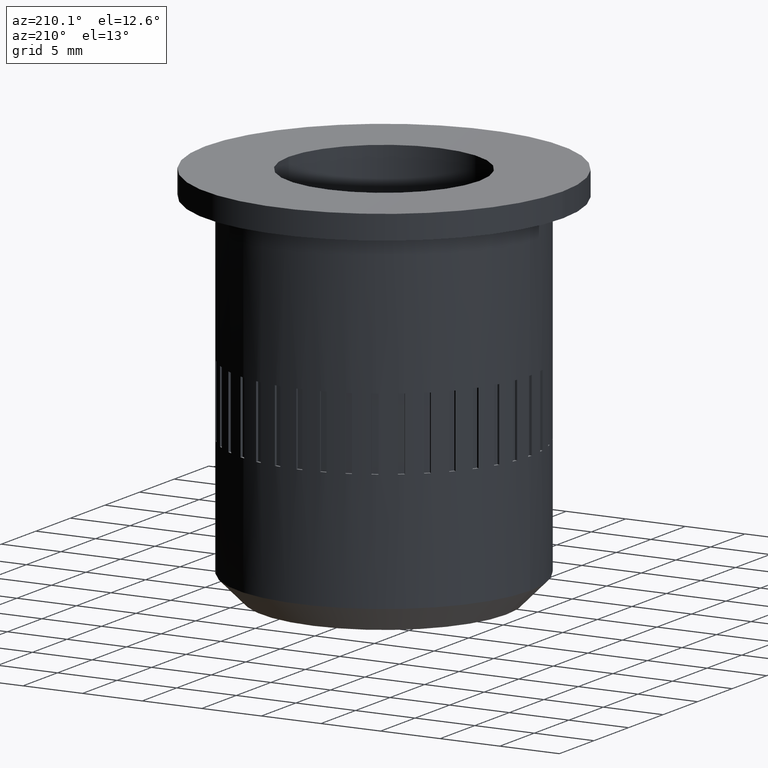
[diagram: clean part render]
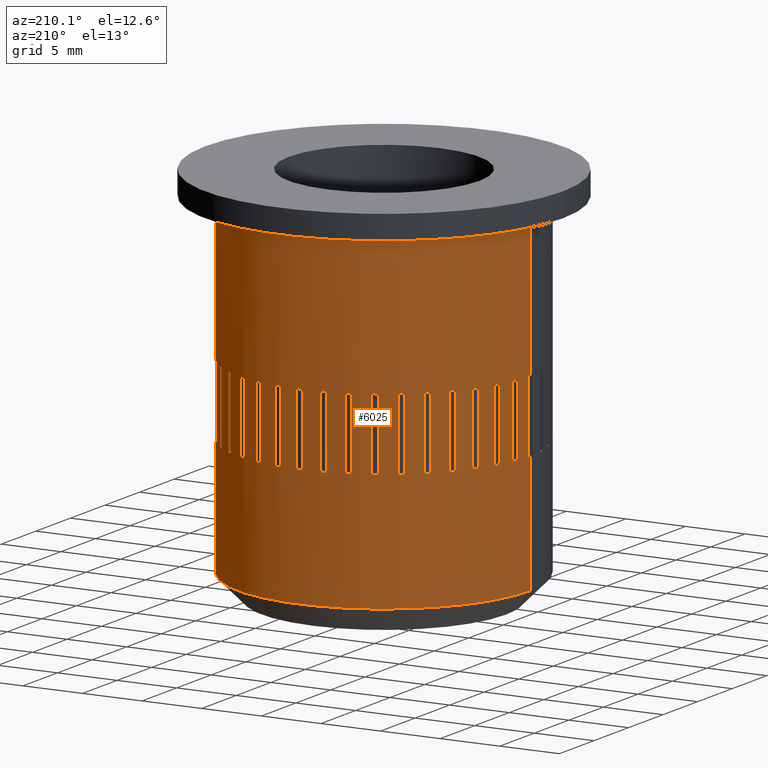
[diagram: same view with one face highlighted and labeled with its STEP entity id]
A machine part, auxiliary view. The second image highlights one B-rep face of the part: STEP entity #6025.
In plain terms, the highlighted cylindrical surface (partial cylindrical patch) has radius 12.25 mm, axis along (-0, -0, -1).
Its self-contained STEP definition (entity closure, byte-faithful):
#16 = EDGE_CURVE ( 'NONE', #161, #240, #5222, .T. ) ;
#18 = EDGE_LOOP ( 'NONE', ( #1911, #1912, #1913, #1914 ) ) ;
#134 = VERTEX_POINT ( 'NONE', #5407 ) ;
#148 = VERTEX_POINT ( 'NONE', #2913 ) ;
#161 = VERTEX_POINT ( 'NONE', #2868 ) ;
#163 = VERTEX_POINT ( 'NONE', #2876 ) ;
#191 = VERTEX_POINT ( 'NONE', #2281 ) ;
#203 = VERTEX_POINT ( 'NONE', #2292 ) ;
#204 = VERTEX_POINT ( 'NONE', #2295 ) ;
#205 = VERTEX_POINT ( 'NONE', #2290 ) ;
#211 = VERTEX_POINT ( 'NONE', #2293 ) ;
#212 = VERTEX_POINT ( 'NONE', #2315 ) ;
#220 = VERTEX_POINT ( 'NONE', #2296 ) ;
#223 = VERTEX_POINT ( 'NONE', #2288 ) ;
#238 = VERTEX_POINT ( 'NONE', #1213 ) ;
#240 = VERTEX_POINT ( 'NONE', #1232 ) ;
#242 = VERTEX_POINT ( 'NONE', #1233 ) ;
#254 = VERTEX_POINT ( 'NONE', #1246 ) ;
#255 = VERTEX_POINT ( 'NONE', #1247 ) ;
#256 = VERTEX_POINT ( 'NONE', #1244 ) ;
#257 = VERTEX_POINT ( 'NONE', #1245 ) ;
#258 = VERTEX_POINT ( 'NONE', #1242 ) ;
#259 = VERTEX_POINT ( 'NONE', #1243 ) ;
#260 = VERTEX_POINT ( 'NONE', #1240 ) ;
#261 = VERTEX_POINT ( 'NONE', #1241 ) ;
#262 = VERTEX_POINT ( 'NONE', #1238 ) ;
#263 = VERTEX_POINT ( 'NONE', #1239 ) ;
#264 = VERTEX_POINT ( 'NONE', #1222 ) ;
#265 = VERTEX_POINT ( 'NONE', #1221 ) ;
#266 = VERTEX_POINT ( 'NONE', #1223 ) ;
#267 = VERTEX_POINT ( 'NONE', #1208 ) ;
#268 = VERTEX_POINT ( 'NONE', #1216 ) ;
#269 = VERTEX_POINT ( 'NONE', #1214 ) ;
#271 = VERTEX_POINT ( 'NONE', #1224 ) ;
#273 = VERTEX_POINT ( 'NONE', #5665 ) ;
#274 = VERTEX_POINT ( 'NONE', #5651 ) ;
#275 = VERTEX_POINT ( 'NONE', #5652 ) ;
#276 = VERTEX_POINT ( 'NONE', #5657 ) ;
#278 = VERTEX_POINT ( 'NONE', #5662 ) ;
#281 = VERTEX_POINT ( 'NONE', #5645 ) ;
#283 = VERTEX_POINT ( 'NONE', #5676 ) ;
#285 = VERTEX_POINT ( 'NONE', #5677 ) ;
#290 = VERTEX_POINT ( 'NONE', #5672 ) ;
#298 = VERTEX_POINT ( 'NONE', #5673 ) ;
#303 = VERTEX_POINT ( 'NONE', #5670 ) ;
#304 = VERTEX_POINT ( 'NONE', #5675 ) ;
#305 = VERTEX_POINT ( 'NONE', #5649 ) ;
#306 = VERTEX_POINT ( 'NONE', #5644 ) ;
#307 = VERTEX_POINT ( 'NONE', #5669 ) ;
#308 = VERTEX_POINT ( 'NONE', #5671 ) ;
#309 = VERTEX_POINT ( 'NONE', #2956 ) ;
#310 = VERTEX_POINT ( 'NONE', #2955 ) ;
#311 = VERTEX_POINT ( 'NONE', #2958 ) ;
#312 = VERTEX_POINT ( 'NONE', #2961 ) ;
#313 = VERTEX_POINT ( 'NONE', #2954 ) ;
#315 = VERTEX_POINT ( 'NONE', #2952 ) ;
#316 = VERTEX_POINT ( 'NONE', #2953 ) ;
#317 = VERTEX_POINT ( 'NONE', #2968 ) ;
#318 = VERTEX_POINT ( 'NONE', #2951 ) ;
#319 = VERTEX_POINT ( 'NONE', #2950 ) ;
#320 = VERTEX_POINT ( 'NONE', #2957 ) ;
#321 = VERTEX_POINT ( 'NONE', #2959 ) ;
#322 = VERTEX_POINT ( 'NONE', #2949 ) ;
#326 = VERTEX_POINT ( 'NONE', #2967 ) ;
#331 = VERTEX_POINT ( 'NONE', #2964 ) ;
#336 = VERTEX_POINT ( 'NONE', #1357 ) ;
#338 = VERTEX_POINT ( 'NONE', #1350 ) ;
#339 = VERTEX_POINT ( 'NONE', #1353 ) ;
#340 = VERTEX_POINT ( 'NONE', #1352 ) ;
#342 = VERTEX_POINT ( 'NONE', #1348 ) ;
#350 = VERTEX_POINT ( 'NONE', #1346 ) ;
#354 = VERTEX_POINT ( 'NONE', #2946 ) ;
#355 = VERTEX_POINT ( 'NONE', #2945 ) ;
#356 = VERTEX_POINT ( 'NONE', #2944 ) ;
#357 = VERTEX_POINT ( 'NONE', #2934 ) ;
#363 = VERTEX_POINT ( 'NONE', #2943 ) ;
#366 = VERTEX_POINT ( 'NONE', #2941 ) ;
#367 = VERTEX_POINT ( 'NONE', #1059 ) ;
#368 = VERTEX_POINT ( 'NONE', #1060 ) ;
#370 = VERTEX_POINT ( 'NONE', #1062 ) ;
#377 = VERTEX_POINT ( 'NONE', #1069 ) ;
#378 = VERTEX_POINT ( 'NONE', #1070 ) ;
#379 = VERTEX_POINT ( 'NONE', #1071 ) ;
#385 = VERTEX_POINT ( 'NONE', #1077 ) ;
#389 = VERTEX_POINT ( 'NONE', #1081 ) ;
#399 = VERTEX_POINT ( 'NONE', #1091 ) ;
#402 = EDGE_LOOP ( 'NONE', ( #4320, #4319, #4318, #4317, #4316, #4315, #4314, #4313, #3972, #3982, #3980, #3978 ) ) ;
#404 = EDGE_LOOP ( 'NONE', ( #3521, #3520, #3522, #3524 ) ) ;
#406 = EDGE_LOOP ( 'NONE', ( #3966, #3516, #3537, #3536 ) ) ;
#407 = EDGE_LOOP ( 'NONE', ( #3964, #4345, #3523, #3519 ) ) ;
#469 = CARTESIAN_POINT ( 'NONE',  ( 0.0000000000000000000, 0.0000000000000000000, 12.00000000000000200 ) ) ;
#470 = DIRECTION ( 'NONE',  ( 0.0000000000000000000, 0.0000000000000000000, 1.000000000000000000 ) ) ;
#471 = DIRECTION ( 'NONE',  ( 0.3090169943749446800, 0.9510565162951544200, 0.0000000000000000000 ) ) ;
#472 = CARTESIAN_POINT ( 'NONE',  ( 0.0000000000000000000, 0.0000000000000000000, 12.00000000000000200 ) ) ;
#473 = DIRECTION ( 'NONE',  ( 0.0000000000000000000, 0.0000000000000000000, 1.000000000000000000 ) ) ;
#474 = DIRECTION ( 'NONE',  ( 0.8910065241883673400, 0.4539904997395477500, 0.0000000000000000000 ) ) ;
#475 = CARTESIAN_POINT ( 'NONE',  ( 0.0000000000000000000, 0.0000000000000000000, 12.00000000000000200 ) ) ;
#476 = DIRECTION ( 'NONE',  ( 0.0000000000000000000, 0.0000000000000000000, 1.000000000000000000 ) ) ;
#477 = DIRECTION ( 'NONE',  ( 0.7071067811865561200, -0.7071067811865389100, 0.0000000000000000000 ) ) ;
#478 = CARTESIAN_POINT ( 'NONE',  ( 1.669001002520141600, 12.13577091303172400, 12.00000000000000200 ) ) ;
#479 = DIRECTION ( 'NONE',  ( -0.0000000000000000000, -0.0000000000000000000, 1.000000000000000000 ) ) ;
#480 = CARTESIAN_POINT ( 'NONE',  ( -8.837030733141039800, 8.483477342547734800, 12.00000000000000200 ) ) ;
#481 = DIRECTION ( 'NONE',  ( -0.0000000000000000000, -0.0000000000000000000, 1.000000000000000000 ) ) ;
#482 = CARTESIAN_POINT ( 'NONE',  ( -0.2500000000000007800, 12.24744871391589000, 12.00000000000000200 ) ) ;
#483 = DIRECTION ( 'NONE',  ( -0.0000000000000000000, -0.0000000000000000000, 1.000000000000000000 ) ) ;
#484 = CARTESIAN_POINT ( 'NONE',  ( 0.0000000000000000000, 0.0000000000000000000, 18.00000000000000400 ) ) ;
#485 = DIRECTION ( 'NONE',  ( 0.0000000000000000000, 0.0000000000000000000, 1.000000000000000000 ) ) ;
#486 = DIRECTION ( 'NONE',  ( 0.1564344650402276200, 0.9876883405951383300, 0.0000000000000000000 ) ) ;
#487 = CARTESIAN_POINT ( 'NONE',  ( -12.25000000000000000, 0.0000000000000000000, 30.00000000000000000 ) ) ;
#488 = DIRECTION ( 'NONE',  ( -0.0000000000000000000, -0.0000000000000000000, -1.000000000000000000 ) ) ;
#489 = CARTESIAN_POINT ( 'NONE',  ( 0.0000000000000000000, 0.0000000000000000000, 18.00000000000000400 ) ) ;
#490 = DIRECTION ( 'NONE',  ( 0.0000000000000000000, 0.0000000000000000000, 1.000000000000000000 ) ) ;
#491 = DIRECTION ( 'NONE',  ( 0.8910065241883673400, 0.4539904997395477500, 0.0000000000000000000 ) ) ;
#492 = CARTESIAN_POINT ( 'NONE',  ( 0.2499999999999992500, 12.24744871391589000, 12.00000000000000200 ) ) ;
#493 = DIRECTION ( 'NONE',  ( -0.0000000000000000000, -0.0000000000000000000, 1.000000000000000000 ) ) ;
#494 = CARTESIAN_POINT ( 'NONE',  ( 0.0000000000000000000, 0.0000000000000000000, 12.00000000000000200 ) ) ;
#495 = DIRECTION ( 'NONE',  ( 0.0000000000000000000, 0.0000000000000000000, 1.000000000000000000 ) ) ;
#496 = DIRECTION ( 'NONE',  ( 0.8910065241883737800, -0.4539904997395350900, 0.0000000000000000000 ) ) ;
#497 = CARTESIAN_POINT ( 'NONE',  ( 0.0000000000000000000, 0.0000000000000000000, 12.00000000000000200 ) ) ;
#498 = DIRECTION ( 'NONE',  ( 0.0000000000000000000, 0.0000000000000000000, 1.000000000000000000 ) ) ;
#499 = DIRECTION ( 'NONE',  ( 0.8090169943749465600, 0.5877852522924741400, 0.0000000000000000000 ) ) ;
#504 = CARTESIAN_POINT ( 'NONE',  ( -12.24744871391589200, 0.2499999999999564800, 12.00000000000000200 ) ) ;
#505 = DIRECTION ( 'NONE',  ( -0.0000000000000000000, -0.0000000000000000000, 1.000000000000000000 ) ) ;
#509 = CARTESIAN_POINT ( 'NONE',  ( 10.79905908382654000, 5.782976993212360000, 12.00000000000000200 ) ) ;
#510 = DIRECTION ( 'NONE',  ( -0.0000000000000000000, -0.0000000000000000000, 1.000000000000000000 ) ) ;
#511 = CARTESIAN_POINT ( 'NONE',  ( 0.0000000000000000000, 0.0000000000000000000, 12.00000000000000200 ) ) ;
#512 = DIRECTION ( 'NONE',  ( 0.0000000000000000000, 0.0000000000000000000, 1.000000000000000000 ) ) ;
#513 = DIRECTION ( 'NONE',  ( 0.9876883405951398800, -0.1564344650402170700, 0.0000000000000000000 ) ) ;
#514 = CARTESIAN_POINT ( 'NONE',  ( 0.0000000000000000000, 0.0000000000000000000, 12.00000000000000200 ) ) ;
#515 = DIRECTION ( 'NONE',  ( 0.0000000000000000000, 0.0000000000000000000, 1.000000000000000000 ) ) ;
#516 = DIRECTION ( 'NONE',  ( 0.1564344650402420800, -0.9876883405951359900, 0.0000000000000000000 ) ) ;
#519 = CARTESIAN_POINT ( 'NONE',  ( 0.0000000000000000000, 0.0000000000000000000, 18.00000000000000400 ) ) ;
#520 = DIRECTION ( 'NONE',  ( 0.0000000000000000000, 0.0000000000000000000, 1.000000000000000000 ) ) ;
#521 = DIRECTION ( 'NONE',  ( 1.000000000000000000, 0.0000000000000000000, 0.0000000000000000000 ) ) ;
#522 = CARTESIAN_POINT ( 'NONE',  ( 12.24744871391588700, 0.2500000000001290100, 12.00000000000000200 ) ) ;
#523 = DIRECTION ( 'NONE',  ( -0.0000000000000000000, -0.0000000000000000000, 1.000000000000000000 ) ) ;
#524 = CARTESIAN_POINT ( 'NONE',  ( 0.0000000000000000000, 0.0000000000000000000, 12.00000000000000200 ) ) ;
#525 = DIRECTION ( 'NONE',  ( 0.0000000000000000000, 0.0000000000000000000, 1.000000000000000000 ) ) ;
#526 = DIRECTION ( 'NONE',  ( 0.4539904997395447000, 0.8910065241883690100, 0.0000000000000000000 ) ) ;
#527 = CARTESIAN_POINT ( 'NONE',  ( 8.483477342547640600, 8.837030733141126900, 12.00000000000000200 ) ) ;
#528 = DIRECTION ( 'NONE',  ( -0.0000000000000000000, -0.0000000000000000000, 1.000000000000000000 ) ) ;
#532 = CARTESIAN_POINT ( 'NONE',  ( 0.0000000000000000000, 0.0000000000000000000, 12.00000000000000200 ) ) ;
#533 = DIRECTION ( 'NONE',  ( 0.0000000000000000000, 0.0000000000000000000, 1.000000000000000000 ) ) ;
#534 = DIRECTION ( 'NONE',  ( -3.491481338843133700E-015, 1.000000000000000000, 0.0000000000000000000 ) ) ;
#538 = CARTESIAN_POINT ( 'NONE',  ( 5.337473731117908600, 11.02605433369645200, 12.00000000000000200 ) ) ;
#539 = DIRECTION ( 'NONE',  ( -0.0000000000000000000, -0.0000000000000000000, 1.000000000000000000 ) ) ;
#542 = CARTESIAN_POINT ( 'NONE',  ( 0.0000000000000000000, 0.0000000000000000000, 1.999999999999998200 ) ) ;
#543 = DIRECTION ( 'NONE',  ( -0.0000000000000000000, -0.0000000000000000000, 1.000000000000000000 ) ) ;
#544 = DIRECTION ( 'NONE',  ( 1.000000000000000000, 0.0000000000000000000, 0.0000000000000000000 ) ) ;
#545 = CARTESIAN_POINT ( 'NONE',  ( 0.0000000000000000000, 0.0000000000000000000, 18.00000000000000400 ) ) ;
#546 = DIRECTION ( 'NONE',  ( 0.0000000000000000000, 0.0000000000000000000, 1.000000000000000000 ) ) ;
#547 = DIRECTION ( 'NONE',  ( 0.7071067811865561200, -0.7071067811865389100, 0.0000000000000000000 ) ) ;
#548 = CARTESIAN_POINT ( 'NONE',  ( -6.996615483654457200, 10.05534046036666000, 12.00000000000000200 ) ) ;
#549 = DIRECTION ( 'NONE',  ( -0.0000000000000000000, -0.0000000000000000000, 1.000000000000000000 ) ) ;
#550 = CARTESIAN_POINT ( 'NONE',  ( -5.782976993212249000, 10.79905908382660100, 12.00000000000000200 ) ) ;
#551 = DIRECTION ( 'NONE',  ( -0.0000000000000000000, -0.0000000000000000000, 1.000000000000000000 ) ) ;
#552 = CARTESIAN_POINT ( 'NONE',  ( -10.05534046036668300, 6.996615483654419000, 12.00000000000000200 ) ) ;
#553 = DIRECTION ( 'NONE',  ( -0.0000000000000000000, -0.0000000000000000000, 1.000000000000000000 ) ) ;
#554 = CARTESIAN_POINT ( 'NONE',  ( 3.546905661261661200, 11.72527015595419000, 12.00000000000000200 ) ) ;
#555 = DIRECTION ( 'NONE',  ( -0.0000000000000000000, -0.0000000000000000000, 1.000000000000000000 ) ) ;
#560 = EDGE_LOOP ( 'NONE', ( #4330, #4331, #4332, #4333 ) ) ;
#561 = EDGE_LOOP ( 'NONE', ( #1915, #1916, #1917, #1918 ) ) ;
#562 = EDGE_LOOP ( 'NONE', ( #4341, #4343, #4294, #4293 ) ) ;
#838 = CARTESIAN_POINT ( 'NONE',  ( 0.0000000000000000000, 0.0000000000000000000, 30.00000000000000000 ) ) ;
#839 = DIRECTION ( 'NONE',  ( -0.0000000000000000000, -0.0000000000000000000, -1.000000000000000000 ) ) ;
#840 = DIRECTION ( 'NONE',  ( -1.000000000000000000, 0.0000000000000000000, 0.0000000000000000000 ) ) ;
#889 = EDGE_CURVE ( 'NONE', #212, #203, #5226, .T. ) ;
#890 = EDGE_CURVE ( 'NONE', #203, #242, #5229, .T. ) ;
#891 = EDGE_CURVE ( 'NONE', #191, #5641, #5228, .T. ) ;
#894 = EDGE_CURVE ( 'NONE', #238, #148, #5232, .T. ) ;
#908 = EDGE_CURVE ( 'NONE', #356, #355, #5262, .T. ) ;
#909 = EDGE_CURVE ( 'NONE', #377, #379, #5261, .T. ) ;
#911 = EDGE_CURVE ( 'NONE', #331, #290, #5264, .T. ) ;
#922 = EDGE_LOOP ( 'NONE', ( #3535, #3534, #3533, #3532 ) ) ;
#923 = EDGE_LOOP ( 'NONE', ( #3976, #3974, #3970, #3968 ) ) ;
#925 = EDGE_CURVE ( 'NONE', #5641, #5640, #5286, .T. ) ;
#926 = EDGE_CURVE ( 'NONE', #306, #274, #5285, .T. ) ;
#928 = EDGE_CURVE ( 'NONE', #260, #354, #5288, .T. ) ;
#930 = EDGE_CURVE ( 'NONE', #339, #357, #4830, .T. ) ;
#933 = EDGE_CURVE ( 'NONE', #354, #370, #4834, .T. ) ;
#957 = FACE_BOUND ( 'NONE', #407, .T. ) ;
#958 = FACE_BOUND ( 'NONE', #404, .T. ) ;
#959 = FACE_BOUND ( 'NONE', #2171, .T. ) ;
#960 = FACE_BOUND ( 'NONE', #18, .T. ) ;
#961 = FACE_BOUND ( 'NONE', #561, .T. ) ;
#962 = FACE_BOUND ( 'NONE', #1363, .T. ) ;
#963 = FACE_BOUND ( 'NONE', #2170, .T. ) ;
#964 = FACE_BOUND ( 'NONE', #1906, .T. ) ;
#965 = FACE_BOUND ( 'NONE', #560, .T. ) ;
#966 = FACE_BOUND ( 'NONE', #3498, .T. ) ;
#967 = FACE_BOUND ( 'NONE', #2173, .T. ) ;
#968 = FACE_BOUND ( 'NONE', #923, .T. ) ;
#969 = FACE_BOUND ( 'NONE', #406, .T. ) ;
#970 = FACE_BOUND ( 'NONE', #922, .T. ) ;
#971 = FACE_BOUND ( 'NONE', #5825, .T. ) ;
#972 = FACE_BOUND ( 'NONE', #562, .T. ) ;
#973 = FACE_BOUND ( 'NONE', #2169, .T. ) ;
#974 = FACE_BOUND ( 'NONE', #1903, .T. ) ;
#975 = FACE_BOUND ( 'NONE', #1904, .T. ) ;
#976 = FACE_OUTER_BOUND ( 'NONE', #402, .T. ) ;
#977 = CYLINDRICAL_SURFACE ( 'NONE', #3326, 12.25000000000000000 ) ;
#1059 = CARTESIAN_POINT ( 'NONE',  ( -12.13577091303170300, 1.669001002520270800, 18.00000000000000400 ) ) ;
#1060 = CARTESIAN_POINT ( 'NONE',  ( -10.79905908382662000, 5.782976993212209900, 12.00000000000000200 ) ) ;
#1062 = CARTESIAN_POINT ( 'NONE',  ( 12.24744871391588700, 0.2500000000001290100, 18.00000000000000400 ) ) ;
#1069 = CARTESIAN_POINT ( 'NONE',  ( -11.02605433369639200, 5.337473731118024900, 12.00000000000000200 ) ) ;
#1070 = CARTESIAN_POINT ( 'NONE',  ( -10.79905908382662000, 5.782976993212209900, 18.00000000000000400 ) ) ;
#1071 = CARTESIAN_POINT ( 'NONE',  ( -11.02605433369639300, 5.337473731118025800, 18.00000000000000400 ) ) ;
#1077 = CARTESIAN_POINT ( 'NONE',  ( -11.57076165876668300, 4.022433919409359700, 12.00000000000000200 ) ) ;
#1081 = CARTESIAN_POINT ( 'NONE',  ( -12.25000000000000000, 0.0000000000000000000, 12.00000000000000200 ) ) ;
#1091 = CARTESIAN_POINT ( 'NONE',  ( -7.401123980841929600, 9.761447834220419400, 18.00000000000000400 ) ) ;
#1092 = CARTESIAN_POINT ( 'NONE',  ( 2.162845172817711600, 12.05755368051161400, 12.00000000000000200 ) ) ;
#1093 = DIRECTION ( 'NONE',  ( -0.0000000000000000000, -0.0000000000000000000, 1.000000000000000000 ) ) ;
#1094 = CARTESIAN_POINT ( 'NONE',  ( 0.0000000000000000000, 0.0000000000000000000, 18.00000000000000400 ) ) ;
#1095 = DIRECTION ( 'NONE',  ( 0.0000000000000000000, 0.0000000000000000000, 1.000000000000000000 ) ) ;
#1096 = DIRECTION ( 'NONE',  ( 0.9876883405951398800, -0.1564344650402170700, 0.0000000000000000000 ) ) ;
#1097 = CARTESIAN_POINT ( 'NONE',  ( 11.02605433369631900, 5.337473731118178600, 12.00000000000000200 ) ) ;
#1098 = DIRECTION ( 'NONE',  ( -0.0000000000000000000, -0.0000000000000000000, 1.000000000000000000 ) ) ;
#1105 = CARTESIAN_POINT ( 'NONE',  ( 5.782976993212096200, 10.79905908382668600, 12.00000000000000200 ) ) ;
#1106 = DIRECTION ( 'NONE',  ( -0.0000000000000000000, -0.0000000000000000000, 1.000000000000000000 ) ) ;
#1133 = CARTESIAN_POINT ( 'NONE',  ( 0.0000000000000000000, 0.0000000000000000000, 12.00000000000000200 ) ) ;
#1134 = DIRECTION ( 'NONE',  ( 0.0000000000000000000, 0.0000000000000000000, 1.000000000000000000 ) ) ;
#1135 = DIRECTION ( 'NONE',  ( 0.1564344650402276200, 0.9876883405951383300, 0.0000000000000000000 ) ) ;
#1136 = CARTESIAN_POINT ( 'NONE',  ( -11.02605433369639200, 5.337473731118024900, 12.00000000000000200 ) ) ;
#1137 = DIRECTION ( 'NONE',  ( -0.0000000000000000000, -0.0000000000000000000, 1.000000000000000000 ) ) ;
#1141 = CARTESIAN_POINT ( 'NONE',  ( -2.162845172817886100, 12.05755368051158300, 12.00000000000000200 ) ) ;
#1142 = DIRECTION ( 'NONE',  ( -0.0000000000000000000, -0.0000000000000000000, 1.000000000000000000 ) ) ;
#1161 = CARTESIAN_POINT ( 'NONE',  ( 0.0000000000000000000, 0.0000000000000000000, 18.00000000000000400 ) ) ;
#1162 = DIRECTION ( 'NONE',  ( 0.0000000000000000000, 0.0000000000000000000, 1.000000000000000000 ) ) ;
#1163 = DIRECTION ( 'NONE',  ( 0.4539904997395569600, -0.8910065241883627900, 0.0000000000000000000 ) ) ;
#1164 = CARTESIAN_POINT ( 'NONE',  ( 10.05534046036658100, 6.996615483654563800, 12.00000000000000200 ) ) ;
#1165 = DIRECTION ( 'NONE',  ( -0.0000000000000000000, -0.0000000000000000000, 1.000000000000000000 ) ) ;
#1169 = CARTESIAN_POINT ( 'NONE',  ( 12.25000000000000000, 1.500192328955507700E-015, 30.00000000000000000 ) ) ;
#1170 = DIRECTION ( 'NONE',  ( -0.0000000000000000000, -0.0000000000000000000, -1.000000000000000000 ) ) ;
#1174 = CARTESIAN_POINT ( 'NONE',  ( 0.0000000000000000000, 0.0000000000000000000, 18.00000000000000400 ) ) ;
#1175 = DIRECTION ( 'NONE',  ( 0.0000000000000000000, 0.0000000000000000000, 1.000000000000000000 ) ) ;
#1176 = DIRECTION ( 'NONE',  ( 0.1564344650402420800, -0.9876883405951359900, 0.0000000000000000000 ) ) ;
#1183 = CARTESIAN_POINT ( 'NONE',  ( 0.0000000000000000000, 0.0000000000000000000, 18.00000000000000400 ) ) ;
#1184 = DIRECTION ( 'NONE',  ( 0.0000000000000000000, 0.0000000000000000000, 1.000000000000000000 ) ) ;
#1185 = DIRECTION ( 'NONE',  ( 1.047444401652940000E-014, -1.000000000000000000, 0.0000000000000000000 ) ) ;
#1208 = CARTESIAN_POINT ( 'NONE',  ( -12.25000000000000000, 0.0000000000000000000, 30.00000000000000000 ) ) ;
#1213 = CARTESIAN_POINT ( 'NONE',  ( 5.782976993212096200, 10.79905908382668600, 12.00000000000000200 ) ) ;
#1214 = CARTESIAN_POINT ( 'NONE',  ( -10.05534046036668300, 6.996615483654419000, 18.00000000000000400 ) ) ;
#1216 = CARTESIAN_POINT ( 'NONE',  ( -12.24744871391589200, 0.2499999999999564800, 18.00000000000000400 ) ) ;
#1221 = CARTESIAN_POINT ( 'NONE',  ( 3.546905661261661200, 11.72527015595419000, 18.00000000000000400 ) ) ;
#1222 = CARTESIAN_POINT ( 'NONE',  ( -5.337473731118064900, 11.02605433369637400, 12.00000000000000200 ) ) ;
#1223 = CARTESIAN_POINT ( 'NONE',  ( -11.57076165876668300, 4.022433919409359700, 18.00000000000000400 ) ) ;
#1224 = CARTESIAN_POINT ( 'NONE',  ( -11.72527015595415500, 3.546905661261782400, 12.00000000000000200 ) ) ;
#1232 = CARTESIAN_POINT ( 'NONE',  ( 8.837030733140919000, 8.483477342547857300, 18.00000000000000400 ) ) ;
#1233 = CARTESIAN_POINT ( 'NONE',  ( 1.669001002520140900, 12.13577091303172000, 18.00000000000000400 ) ) ;
#1238 = CARTESIAN_POINT ( 'NONE',  ( -9.761447834220447800, 7.401123980841893200, 18.00000000000000400 ) ) ;
#1239 = CARTESIAN_POINT ( 'NONE',  ( 3.546905661261661200, 11.72527015595419000, 12.00000000000000200 ) ) ;
#1240 = CARTESIAN_POINT ( 'NONE',  ( 12.25000000000000000, 1.500192328955507700E-015, 30.00000000000000000 ) ) ;
#1241 = CARTESIAN_POINT ( 'NONE',  ( -4.022433919409400500, 11.57076165876666700, 18.00000000000000400 ) ) ;
#1242 = CARTESIAN_POINT ( 'NONE',  ( 4.022433919409240700, 11.57076165876672200, 18.00000000000000400 ) ) ;
#1243 = CARTESIAN_POINT ( 'NONE',  ( -4.022433919409401400, 11.57076165876666900, 12.00000000000000200 ) ) ;
#1244 = CARTESIAN_POINT ( 'NONE',  ( 4.022433919409240700, 11.57076165876672200, 12.00000000000000200 ) ) ;
#1245 = CARTESIAN_POINT ( 'NONE',  ( -0.2500000000000007800, 12.24744871391589000, 18.00000000000000400 ) ) ;
#1246 = CARTESIAN_POINT ( 'NONE',  ( -3.546905661261825000, 11.72527015595414200, 18.00000000000000400 ) ) ;
#1247 = CARTESIAN_POINT ( 'NONE',  ( 9.761447834220339500, 7.401123980842034400, 12.00000000000000200 ) ) ;
#1346 = CARTESIAN_POINT ( 'NONE',  ( 7.401123980841785700, 9.761447834220529500, 12.00000000000000200 ) ) ;
#1348 = CARTESIAN_POINT ( 'NONE',  ( 12.25000000000000000, 1.500192328955507700E-015, 12.00000000000000200 ) ) ;
#1350 = CARTESIAN_POINT ( 'NONE',  ( 12.05755368051155900, 2.162845172818018000, 12.00000000000000200 ) ) ;
#1352 = CARTESIAN_POINT ( 'NONE',  ( -12.24744871391589200, 0.2499999999999564800, 12.00000000000000200 ) ) ;
#1353 = CARTESIAN_POINT ( 'NONE',  ( 12.13577091303167800, 1.669001002520450000, 18.00000000000000400 ) ) ;
#1357 = CARTESIAN_POINT ( 'NONE',  ( -8.837030733141039800, 8.483477342547734800, 12.00000000000000200 ) ) ;
#1363 = EDGE_LOOP ( 'NONE', ( #1919, #1920, #1921, #1922 ) ) ;
#1727 = CARTESIAN_POINT ( 'NONE',  ( 12.13577091303167800, 1.669001002520450000, 12.00000000000000200 ) ) ;
#1728 = CARTESIAN_POINT ( 'NONE',  ( 10.79905908382654000, 5.782976993212360000, 12.00000000000000200 ) ) ;
#1729 = CARTESIAN_POINT ( 'NONE',  ( 10.79905908382654000, 5.782976993212360000, 18.00000000000000400 ) ) ;
#1730 = CARTESIAN_POINT ( 'NONE',  ( 11.02605433369631900, 5.337473731118178600, 18.00000000000000400 ) ) ;
#1903 = EDGE_LOOP ( 'NONE', ( #4288, #4287, #4286, #4325 ) ) ;
#1904 = EDGE_LOOP ( 'NONE', ( #4324, #4323, #4322, #4321 ) ) ;
#1906 = EDGE_LOOP ( 'NONE', ( #4326, #4327, #4328, #4329 ) ) ;
#1907 = ORIENTED_EDGE ( 'NONE', *, *, #16, .T. ) ;
#1908 = ORIENTED_EDGE ( 'NONE', *, *, #2567, .F. ) ;
#1909 = ORIENTED_EDGE ( 'NONE', *, *, #2595, .T. ) ;
#1910 = ORIENTED_EDGE ( 'NONE', *, *, #2588, .F. ) ;
#1911 = ORIENTED_EDGE ( 'NONE', *, *, #2862, .F. ) ;
#1912 = ORIENTED_EDGE ( 'NONE', *, *, #891, .T. ) ;
#1913 = ORIENTED_EDGE ( 'NONE', *, *, #925, .T. ) ;
#1914 = ORIENTED_EDGE ( 'NONE', *, *, #2581, .F. ) ;
#1915 = ORIENTED_EDGE ( 'NONE', *, *, #2583, .F. ) ;
#1916 = ORIENTED_EDGE ( 'NONE', *, *, #2973, .T. ) ;
#1917 = ORIENTED_EDGE ( 'NONE', *, *, #930, .T. ) ;
#1918 = ORIENTED_EDGE ( 'NONE', *, *, #3493, .F. ) ;
#1919 = ORIENTED_EDGE ( 'NONE', *, *, #908, .F. ) ;
#1920 = ORIENTED_EDGE ( 'NONE', *, *, #3491, .T. ) ;
#1921 = ORIENTED_EDGE ( 'NONE', *, *, #2571, .T. ) ;
#1922 = ORIENTED_EDGE ( 'NONE', *, *, #2859, .F. ) ;
#1923 = ORIENTED_EDGE ( 'NONE', *, *, #2587, .F. ) ;
#1924 = ORIENTED_EDGE ( 'NONE', *, *, #3486, .T. ) ;
#1925 = ORIENTED_EDGE ( 'NONE', *, *, #3490, .T. ) ;
#1926 = ORIENTED_EDGE ( 'NONE', *, *, #909, .F. ) ;
#2091 = VECTOR ( 'NONE', #6122, 1000.000000000000000 ) ;
#2092 = LINE ( 'NONE', #6123, #2093 ) ;
#2093 = VECTOR ( 'NONE', #6124, 1000.000000000000000 ) ;
#2094 = LINE ( 'NONE', #6125, #2095 ) ;
#2095 = VECTOR ( 'NONE', #6126, 1000.000000000000000 ) ;
#2097 = LINE ( 'NONE', #6133, #2099 ) ;
#2098 = CIRCLE ( 'NONE', #2770, 12.24999999999999800 ) ;
#2099 = VECTOR ( 'NONE', #6134, 1000.000000000000000 ) ;
#2100 = LINE ( 'NONE', #6135, #2101 ) ;
#2101 = VECTOR ( 'NONE', #6136, 1000.000000000000000 ) ;
#2102 = LINE ( 'NONE', #6137, #2103 ) ;
#2103 = VECTOR ( 'NONE', #6138, 1000.000000000000000 ) ;
#2104 = LINE ( 'NONE', #6139, #2105 ) ;
#2105 = VECTOR ( 'NONE', #6140, 1000.000000000000000 ) ;
#2107 = CIRCLE ( 'NONE', #2771, 12.25000000000000000 ) ;
#2169 = EDGE_LOOP ( 'NONE', ( #4292, #4291, #4290, #4289 ) ) ;
#2170 = EDGE_LOOP ( 'NONE', ( #1923, #1924, #1925, #1926 ) ) ;
#2171 = EDGE_LOOP ( 'NONE', ( #1908, #1907, #1909, #1910 ) ) ;
#2173 = EDGE_LOOP ( 'NONE', ( #4338, #4339, #4340, #4342 ) ) ;
#2281 = CARTESIAN_POINT ( 'NONE',  ( 11.02605433369631900, 5.337473731118178600, 12.00000000000000200 ) ) ;
#2288 = CARTESIAN_POINT ( 'NONE',  ( 12.25000000000000000, 1.500192328955507700E-015, 1.999999999999998200 ) ) ;
#2290 = CARTESIAN_POINT ( 'NONE',  ( 8.483477342547640600, 8.837030733141126900, 12.00000000000000200 ) ) ;
#2292 = CARTESIAN_POINT ( 'NONE',  ( 2.162845172817711600, 12.05755368051161400, 18.00000000000000400 ) ) ;
#2293 = CARTESIAN_POINT ( 'NONE',  ( 5.337473731117907700, 11.02605433369645000, 18.00000000000000400 ) ) ;
#2295 = CARTESIAN_POINT ( 'NONE',  ( 5.337473731117908600, 11.02605433369645200, 12.00000000000000200 ) ) ;
#2296 = CARTESIAN_POINT ( 'NONE',  ( 1.669001002520141600, 12.13577091303172400, 12.00000000000000200 ) ) ;
#2315 = CARTESIAN_POINT ( 'NONE',  ( 2.162845172817711600, 12.05755368051161400, 12.00000000000000200 ) ) ;
#2405 = LINE ( 'NONE', #5753, #2406 ) ;
#2406 = VECTOR ( 'NONE', #5754, 1000.000000000000000 ) ;
#2407 = CIRCLE ( 'NONE', #2746, 12.25000000000000200 ) ;
#2417 = LINE ( 'NONE', #5773, #2418 ) ;
#2418 = VECTOR ( 'NONE', #5774, 1000.000000000000000 ) ;
#2422 = CIRCLE ( 'NONE', #2750, 12.25000000000000000 ) ;
#2426 = CIRCLE ( 'NONE', #2753, 12.25000000000000000 ) ;
#2433 = CIRCLE ( 'NONE', #2755, 12.25000000000000000 ) ;
#2436 = CIRCLE ( 'NONE', #2756, 12.25000000000000400 ) ;
#2438 = LINE ( 'NONE', #5808, #2439 ) ;
#2439 = VECTOR ( 'NONE', #5809, 1000.000000000000000 ) ;
#2442 = LINE ( 'NONE', #5812, #2443 ) ;
#2443 = VECTOR ( 'NONE', #5813, 1000.000000000000000 ) ;
#2444 = CIRCLE ( 'NONE', #2757, 12.25000000000000500 ) ;
#2445 = LINE ( 'NONE', #5820, #2447 ) ;
#2446 = CIRCLE ( 'NONE', #2758, 12.25000000000000400 ) ;
#2447 = VECTOR ( 'NONE', #5821, 1000.000000000000000 ) ;
#2449 = CIRCLE ( 'NONE', #2759, 12.25000000000000500 ) ;
#2565 = EDGE_CURVE ( 'NONE', #385, #271, #4740, .T. ) ;
#2566 = EDGE_CURVE ( 'NONE', #264, #307, #4741, .T. ) ;
#2567 = EDGE_CURVE ( 'NONE', #161, #205, #4743, .T. ) ;
#2568 = EDGE_CURVE ( 'NONE', #220, #242, #4742, .T. ) ;
#2569 = EDGE_CURVE ( 'NONE', #336, #309, #4745, .T. ) ;
#2570 = EDGE_CURVE ( 'NONE', #322, #257, #4747, .T. ) ;
#2571 = EDGE_CURVE ( 'NONE', #366, #367, #4750, .T. ) ;
#2572 = EDGE_CURVE ( 'NONE', #389, #163, #4749, .T. ) ;
#2573 = EDGE_CURVE ( 'NONE', #312, #305, #4753, .T. ) ;
#2574 = EDGE_CURVE ( 'NONE', #319, #304, #4752, .T. ) ;
#2575 = EDGE_CURVE ( 'NONE', #238, #204, #4755, .T. ) ;
#2576 = EDGE_CURVE ( 'NONE', #315, #320, #4757, .T. ) ;
#2579 = EDGE_CURVE ( 'NONE', #340, #268, #4761, .T. ) ;
#2581 = EDGE_CURVE ( 'NONE', #5639, #5640, #4763, .T. ) ;
#2582 = EDGE_CURVE ( 'NONE', #212, #220, #4766, .T. ) ;
#2583 = EDGE_CURVE ( 'NONE', #5638, #338, #4768, .T. ) ;
#2585 = EDGE_CURVE ( 'NONE', #304, #257, #4771, .T. ) ;
#2586 = EDGE_CURVE ( 'NONE', #363, #370, #4770, .T. ) ;
#2587 = EDGE_CURVE ( 'NONE', #368, #377, #4774, .T. ) ;
#2588 = EDGE_CURVE ( 'NONE', #205, #134, #4773, .T. ) ;
#2590 = EDGE_CURVE ( 'NONE', #340, #389, #4777, .T. ) ;
#2592 = EDGE_CURVE ( 'NONE', #204, #211, #4778, .T. ) ;
#2594 = EDGE_CURVE ( 'NONE', #223, #163, #4783, .T. ) ;
#2595 = EDGE_CURVE ( 'NONE', #240, #134, #4785, .T. ) ;
#2596 = EDGE_CURVE ( 'NONE', #315, #313, #4784, .T. ) ;
#2597 = EDGE_CURVE ( 'NONE', #307, #305, #4787, .T. ) ;
#2598 = EDGE_CURVE ( 'NONE', #311, #269, #4789, .T. ) ;
#2599 = EDGE_CURVE ( 'NONE', #263, #265, #4791, .T. ) ;
#2600 = EDGE_CURVE ( 'NONE', #260, #267, #4793, .T. ) ;
#2601 = EDGE_CURVE ( 'NONE', #316, #309, #4794, .T. ) ;
#2603 = EDGE_CURVE ( 'NONE', #258, #265, #4797, .T. ) ;
#2604 = EDGE_CURVE ( 'NONE', #271, #273, #4796, .T. ) ;
#2605 = EDGE_CURVE ( 'NONE', #350, #283, #4799, .T. ) ;
#2607 = EDGE_CURVE ( 'NONE', #317, #290, #4802, .T. ) ;
#2608 = EDGE_CURVE ( 'NONE', #276, #254, #4801, .T. ) ;
#2610 = EDGE_CURVE ( 'NONE', #310, #303, #4807, .T. ) ;
#2612 = EDGE_CURVE ( 'NONE', #274, #281, #4809, .T. ) ;
#2620 = EDGE_CURVE ( 'NONE', #267, #275, #4819, .T. ) ;
#2621 = EDGE_CURVE ( 'NONE', #318, #311, #4822, .T. ) ;
#2624 = EDGE_CURVE ( 'NONE', #262, #269, #4826, .T. ) ;
#2625 = EDGE_CURVE ( 'NONE', #303, #298, #4825, .T. ) ;
#2628 = EDGE_CURVE ( 'NONE', #310, #308, #2405, .T. ) ;
#2629 = EDGE_CURVE ( 'NONE', #256, #263, #2407, .T. ) ;
#2636 = EDGE_CURVE ( 'NONE', #283, #285, #2417, .T. ) ;
#2638 = EDGE_CURVE ( 'NONE', #308, #298, #2422, .T. ) ;
#2642 = EDGE_CURVE ( 'NONE', #306, #255, #2426, .T. ) ;
#2646 = EDGE_CURVE ( 'NONE', #268, #275, #2433, .T. ) ;
#2648 = EDGE_CURVE ( 'NONE', #276, #259, #2436, .T. ) ;
#2650 = EDGE_CURVE ( 'NONE', #255, #281, #2438, .T. ) ;
#2652 = EDGE_CURVE ( 'NONE', #318, #262, #2442, .T. ) ;
#2653 = EDGE_CURVE ( 'NONE', #313, #399, #2444, .T. ) ;
#2654 = EDGE_CURVE ( 'NONE', #254, #261, #2446, .T. ) ;
#2655 = EDGE_CURVE ( 'NONE', #385, #266, #2445, .T. ) ;
#2656 = EDGE_CURVE ( 'NONE', #266, #273, #2449, .T. ) ;
#2686 = AXIS2_PLACEMENT_3D ( 'NONE', #1094, #1095, #1096 ) ;
#2689 = AXIS2_PLACEMENT_3D ( 'NONE', #1133, #1134, #1135 ) ;
#2691 = AXIS2_PLACEMENT_3D ( 'NONE', #1161, #1162, #1163 ) ;
#2694 = AXIS2_PLACEMENT_3D ( 'NONE', #1174, #1175, #1176 ) ;
#2697 = AXIS2_PLACEMENT_3D ( 'NONE', #1183, #1184, #1185 ) ;
#2711 = AXIS2_PLACEMENT_3D ( 'NONE', #469, #470, #471 ) ;
#2712 = AXIS2_PLACEMENT_3D ( 'NONE', #472, #473, #474 ) ;
#2713 = AXIS2_PLACEMENT_3D ( 'NONE', #475, #476, #477 ) ;
#2714 = AXIS2_PLACEMENT_3D ( 'NONE', #484, #485, #486 ) ;
#2715 = AXIS2_PLACEMENT_3D ( 'NONE', #489, #490, #491 ) ;
#2716 = AXIS2_PLACEMENT_3D ( 'NONE', #494, #495, #496 ) ;
#2717 = AXIS2_PLACEMENT_3D ( 'NONE', #497, #498, #499 ) ;
#2719 = AXIS2_PLACEMENT_3D ( 'NONE', #511, #512, #513 ) ;
#2720 = AXIS2_PLACEMENT_3D ( 'NONE', #514, #515, #516 ) ;
#2721 = AXIS2_PLACEMENT_3D ( 'NONE', #519, #520, #521 ) ;
#2722 = AXIS2_PLACEMENT_3D ( 'NONE', #524, #525, #526 ) ;
#2724 = AXIS2_PLACEMENT_3D ( 'NONE', #532, #533, #534 ) ;
#2726 = AXIS2_PLACEMENT_3D ( 'NONE', #542, #543, #544 ) ;
#2727 = AXIS2_PLACEMENT_3D ( 'NONE', #545, #546, #547 ) ;
#2728 = AXIS2_PLACEMENT_3D ( 'NONE', #5679, #5680, #5681 ) ;
#2729 = AXIS2_PLACEMENT_3D ( 'NONE', #5682, #5683, #5684 ) ;
#2731 = AXIS2_PLACEMENT_3D ( 'NONE', #5688, #5689, #5690 ) ;
#2732 = AXIS2_PLACEMENT_3D ( 'NONE', #5693, #5694, #5695 ) ;
#2734 = AXIS2_PLACEMENT_3D ( 'NONE', #5699, #5700, #5701 ) ;
#2735 = AXIS2_PLACEMENT_3D ( 'NONE', #5706, #5707, #5708 ) ;
#2736 = AXIS2_PLACEMENT_3D ( 'NONE', #5711, #5712, #5713 ) ;
#2741 = AXIS2_PLACEMENT_3D ( 'NONE', #5734, #5735, #5736 ) ;
#2744 = AXIS2_PLACEMENT_3D ( 'NONE', #5743, #5744, #5745 ) ;
#2746 = AXIS2_PLACEMENT_3D ( 'NONE', #5755, #5756, #5757 ) ;
#2750 = AXIS2_PLACEMENT_3D ( 'NONE', #5777, #5778, #5779 ) ;
#2753 = AXIS2_PLACEMENT_3D ( 'NONE', #5788, #5789, #5790 ) ;
#2755 = AXIS2_PLACEMENT_3D ( 'NONE', #5798, #5799, #5800 ) ;
#2756 = AXIS2_PLACEMENT_3D ( 'NONE', #5803, #5804, #5805 ) ;
#2757 = AXIS2_PLACEMENT_3D ( 'NONE', #5814, #5815, #5816 ) ;
#2758 = AXIS2_PLACEMENT_3D ( 'NONE', #5817, #5818, #5819 ) ;
#2759 = AXIS2_PLACEMENT_3D ( 'NONE', #5822, #5823, #5824 ) ;
#2761 = AXIS2_PLACEMENT_3D ( 'NONE', #5349, #5350, #5351 ) ;
#2762 = AXIS2_PLACEMENT_3D ( 'NONE', #5352, #5353, #5354 ) ;
#2763 = AXIS2_PLACEMENT_3D ( 'NONE', #6077, #6078, #6079 ) ;
#2764 = AXIS2_PLACEMENT_3D ( 'NONE', #6084, #6085, #6086 ) ;
#2767 = AXIS2_PLACEMENT_3D ( 'NONE', #6097, #6098, #6099 ) ;
#2768 = AXIS2_PLACEMENT_3D ( 'NONE', #6118, #6119, #6120 ) ;
#2770 = AXIS2_PLACEMENT_3D ( 'NONE', #6130, #6131, #6132 ) ;
#2771 = AXIS2_PLACEMENT_3D ( 'NONE', #6141, #6142, #6143 ) ;
#2857 = EDGE_CURVE ( 'NONE', #319, #322, #6199, .T. ) ;
#2858 = EDGE_CURVE ( 'NONE', #326, #331, #6201, .T. ) ;
#2859 = EDGE_CURVE ( 'NONE', #355, #367, #6200, .T. ) ;
#2860 = EDGE_CURVE ( 'NONE', #321, #316, #6203, .T. ) ;
#2861 = EDGE_CURVE ( 'NONE', #350, #278, #6205, .T. ) ;
#2862 = EDGE_CURVE ( 'NONE', #191, #5639, #6208, .T. ) ;
#2863 = EDGE_CURVE ( 'NONE', #264, #312, #6207, .T. ) ;
#2864 = EDGE_CURVE ( 'NONE', #326, #317, #6210, .T. ) ;
#2865 = EDGE_CURVE ( 'NONE', #148, #211, #6213, .T. ) ;
#2868 = CARTESIAN_POINT ( 'NONE',  ( 8.837030733140919000, 8.483477342547857300, 12.00000000000000200 ) ) ;
#2876 = CARTESIAN_POINT ( 'NONE',  ( -12.25000000000000000, 0.0000000000000000000, 1.999999999999998200 ) ) ;
#2913 = CARTESIAN_POINT ( 'NONE',  ( 5.782976993212096200, 10.79905908382668600, 18.00000000000000400 ) ) ;
#2934 = CARTESIAN_POINT ( 'NONE',  ( 12.05755368051155700, 2.162845172818017600, 18.00000000000000400 ) ) ;
#2941 = CARTESIAN_POINT ( 'NONE',  ( -12.05755368051159200, 2.162845172817840400, 18.00000000000000400 ) ) ;
#2943 = CARTESIAN_POINT ( 'NONE',  ( 12.24744871391588700, 0.2500000000001290100, 12.00000000000000200 ) ) ;
#2944 = CARTESIAN_POINT ( 'NONE',  ( -12.05755368051159200, 2.162845172817840400, 12.00000000000000200 ) ) ;
#2945 = CARTESIAN_POINT ( 'NONE',  ( -12.13577091303170400, 1.669001002520271100, 12.00000000000000200 ) ) ;
#2946 = CARTESIAN_POINT ( 'NONE',  ( 12.25000000000000000, 1.500192328955507700E-015, 18.00000000000000400 ) ) ;
#2949 = CARTESIAN_POINT ( 'NONE',  ( -0.2500000000000007800, 12.24744871391589000, 12.00000000000000200 ) ) ;
#2950 = CARTESIAN_POINT ( 'NONE',  ( 0.2499999999999992500, 12.24744871391589000, 12.00000000000000200 ) ) ;
#2951 = CARTESIAN_POINT ( 'NONE',  ( -9.761447834220447800, 7.401123980841893200, 12.00000000000000200 ) ) ;
#2952 = CARTESIAN_POINT ( 'NONE',  ( -6.996615483654457200, 10.05534046036666000, 12.00000000000000200 ) ) ;
#2953 = CARTESIAN_POINT ( 'NONE',  ( -8.483477342547766800, 8.837030733141009600, 18.00000000000000400 ) ) ;
#2954 = CARTESIAN_POINT ( 'NONE',  ( -6.996615483654457200, 10.05534046036666000, 18.00000000000000400 ) ) ;
#2955 = CARTESIAN_POINT ( 'NONE',  ( 11.72527015595410300, 3.546905661261949400, 12.00000000000000200 ) ) ;
#2956 = CARTESIAN_POINT ( 'NONE',  ( -8.837030733141039800, 8.483477342547734800, 18.00000000000000400 ) ) ;
#2957 = CARTESIAN_POINT ( 'NONE',  ( -7.401123980841930500, 9.761447834220421200, 12.00000000000000200 ) ) ;
#2958 = CARTESIAN_POINT ( 'NONE',  ( -10.05534046036668300, 6.996615483654419000, 12.00000000000000200 ) ) ;
#2959 = CARTESIAN_POINT ( 'NONE',  ( -8.483477342547766800, 8.837030733141009600, 12.00000000000000200 ) ) ;
#2961 = CARTESIAN_POINT ( 'NONE',  ( -5.337473731118064900, 11.02605433369637400, 18.00000000000000400 ) ) ;
#2964 = CARTESIAN_POINT ( 'NONE',  ( -2.162845172817886100, 12.05755368051158300, 12.00000000000000200 ) ) ;
#2967 = CARTESIAN_POINT ( 'NONE',  ( -1.669001002520316800, 12.13577091303169900, 12.00000000000000200 ) ) ;
#2968 = CARTESIAN_POINT ( 'NONE',  ( -1.669001002520316800, 12.13577091303169900, 18.00000000000000400 ) ) ;
#2973 = EDGE_CURVE ( 'NONE', #5638, #339, #6215, .T. ) ;
#2976 = EDGE_CURVE ( 'NONE', #278, #285, #6220, .T. ) ;
#3326 = AXIS2_PLACEMENT_3D ( 'NONE', #838, #839, #840 ) ;
#3485 = EDGE_CURVE ( 'NONE', #321, #336, #6239, .T. ) ;
#3486 = EDGE_CURVE ( 'NONE', #368, #378, #6238, .T. ) ;
#3487 = EDGE_CURVE ( 'NONE', #342, #223, #2092, .T. ) ;
#3488 = EDGE_CURVE ( 'NONE', #320, #399, #2094, .T. ) ;
#3490 = EDGE_CURVE ( 'NONE', #378, #379, #2098, .T. ) ;
#3491 = EDGE_CURVE ( 'NONE', #356, #366, #2097, .T. ) ;
#3492 = EDGE_CURVE ( 'NONE', #259, #261, #2100, .T. ) ;
#3493 = EDGE_CURVE ( 'NONE', #338, #357, #2102, .T. ) ;
#3494 = EDGE_CURVE ( 'NONE', #256, #258, #2104, .T. ) ;
#3495 = EDGE_CURVE ( 'NONE', #342, #363, #2107, .T. ) ;
#3498 = EDGE_LOOP ( 'NONE', ( #4334, #4335, #4336, #4337 ) ) ;
#3516 = ORIENTED_EDGE ( 'NONE', *, *, #2596, .T. ) ;
#3519 = ORIENTED_EDGE ( 'NONE', *, *, #2568, .F. ) ;
#3520 = ORIENTED_EDGE ( 'NONE', *, *, #894, .T. ) ;
#3521 = ORIENTED_EDGE ( 'NONE', *, *, #2575, .F. ) ;
#3522 = ORIENTED_EDGE ( 'NONE', *, *, #2865, .T. ) ;
#3523 = ORIENTED_EDGE ( 'NONE', *, *, #890, .T. ) ;
#3524 = ORIENTED_EDGE ( 'NONE', *, *, #2592, .F. ) ;
#3525 = ORIENTED_EDGE ( 'NONE', *, *, #2604, .F. ) ;
#3526 = ORIENTED_EDGE ( 'NONE', *, *, #2656, .T. ) ;
#3530 = ORIENTED_EDGE ( 'NONE', *, *, #2655, .T. ) ;
#3531 = ORIENTED_EDGE ( 'NONE', *, *, #2565, .F. ) ;
#3532 = ORIENTED_EDGE ( 'NONE', *, *, #2598, .F. ) ;
#3533 = ORIENTED_EDGE ( 'NONE', *, *, #2624, .T. ) ;
#3534 = ORIENTED_EDGE ( 'NONE', *, *, #2652, .T. ) ;
#3535 = ORIENTED_EDGE ( 'NONE', *, *, #2621, .F. ) ;
#3536 = ORIENTED_EDGE ( 'NONE', *, *, #3488, .F. ) ;
#3537 = ORIENTED_EDGE ( 'NONE', *, *, #2653, .T. ) ;
#3964 = ORIENTED_EDGE ( 'NONE', *, *, #2582, .F. ) ;
#3966 = ORIENTED_EDGE ( 'NONE', *, *, #2576, .F. ) ;
#3968 = ORIENTED_EDGE ( 'NONE', *, *, #3492, .F. ) ;
#3970 = ORIENTED_EDGE ( 'NONE', *, *, #2654, .T. ) ;
#3972 = ORIENTED_EDGE ( 'NONE', *, *, #2590, .F. ) ;
#3974 = ORIENTED_EDGE ( 'NONE', *, *, #2608, .T. ) ;
#3976 = ORIENTED_EDGE ( 'NONE', *, *, #2648, .F. ) ;
#3978 = ORIENTED_EDGE ( 'NONE', *, *, #2620, .F. ) ;
#3980 = ORIENTED_EDGE ( 'NONE', *, *, #2646, .T. ) ;
#3982 = ORIENTED_EDGE ( 'NONE', *, *, #2579, .T. ) ;
#4286 = ORIENTED_EDGE ( 'NONE', *, *, #2976, .T. ) ;
#4287 = ORIENTED_EDGE ( 'NONE', *, *, #2861, .T. ) ;
#4288 = ORIENTED_EDGE ( 'NONE', *, *, #2605, .F. ) ;
#4289 = ORIENTED_EDGE ( 'NONE', *, *, #2650, .F. ) ;
#4290 = ORIENTED_EDGE ( 'NONE', *, *, #2612, .T. ) ;
#4291 = ORIENTED_EDGE ( 'NONE', *, *, #926, .T. ) ;
#4292 = ORIENTED_EDGE ( 'NONE', *, *, #2642, .F. ) ;
#4293 = ORIENTED_EDGE ( 'NONE', *, *, #2625, .F. ) ;
#4294 = ORIENTED_EDGE ( 'NONE', *, *, #2638, .T. ) ;
#4313 = ORIENTED_EDGE ( 'NONE', *, *, #2572, .F. ) ;
#4314 = ORIENTED_EDGE ( 'NONE', *, *, #2594, .T. ) ;
#4315 = ORIENTED_EDGE ( 'NONE', *, *, #3487, .T. ) ;
#4316 = ORIENTED_EDGE ( 'NONE', *, *, #3495, .F. ) ;
#4317 = ORIENTED_EDGE ( 'NONE', *, *, #2586, .F. ) ;
#4318 = ORIENTED_EDGE ( 'NONE', *, *, #933, .T. ) ;
#4319 = ORIENTED_EDGE ( 'NONE', *, *, #928, .T. ) ;
#4320 = ORIENTED_EDGE ( 'NONE', *, *, #2600, .F. ) ;
#4321 = ORIENTED_EDGE ( 'NONE', *, *, #2599, .F. ) ;
#4322 = ORIENTED_EDGE ( 'NONE', *, *, #2603, .T. ) ;
#4323 = ORIENTED_EDGE ( 'NONE', *, *, #3494, .T. ) ;
#4324 = ORIENTED_EDGE ( 'NONE', *, *, #2629, .F. ) ;
#4325 = ORIENTED_EDGE ( 'NONE', *, *, #2636, .F. ) ;
#4326 = ORIENTED_EDGE ( 'NONE', *, *, #3485, .F. ) ;
#4327 = ORIENTED_EDGE ( 'NONE', *, *, #2860, .T. ) ;
#4328 = ORIENTED_EDGE ( 'NONE', *, *, #2601, .T. ) ;
#4329 = ORIENTED_EDGE ( 'NONE', *, *, #2569, .F. ) ;
#4330 = ORIENTED_EDGE ( 'NONE', *, *, #2566, .F. ) ;
#4331 = ORIENTED_EDGE ( 'NONE', *, *, #2863, .T. ) ;
#4332 = ORIENTED_EDGE ( 'NONE', *, *, #2573, .T. ) ;
#4333 = ORIENTED_EDGE ( 'NONE', *, *, #2597, .F. ) ;
#4334 = ORIENTED_EDGE ( 'NONE', *, *, #2858, .F. ) ;
#4335 = ORIENTED_EDGE ( 'NONE', *, *, #2864, .T. ) ;
#4336 = ORIENTED_EDGE ( 'NONE', *, *, #2607, .T. ) ;
#4337 = ORIENTED_EDGE ( 'NONE', *, *, #911, .F. ) ;
#4338 = ORIENTED_EDGE ( 'NONE', *, *, #2857, .F. ) ;
#4339 = ORIENTED_EDGE ( 'NONE', *, *, #2574, .T. ) ;
#4340 = ORIENTED_EDGE ( 'NONE', *, *, #2585, .T. ) ;
#4341 = ORIENTED_EDGE ( 'NONE', *, *, #2610, .F. ) ;
#4342 = ORIENTED_EDGE ( 'NONE', *, *, #2570, .F. ) ;
#4343 = ORIENTED_EDGE ( 'NONE', *, *, #2628, .T. ) ;
#4345 = ORIENTED_EDGE ( 'NONE', *, *, #889, .T. ) ;
#4740 = CIRCLE ( 'NONE', #2711, 12.25000000000000500 ) ;
#4741 = CIRCLE ( 'NONE', #2712, 12.25000000000000000 ) ;
#4742 = LINE ( 'NONE', #478, #4744 ) ;
#4743 = CIRCLE ( 'NONE', #2713, 12.25000000000000000 ) ;
#4744 = VECTOR ( 'NONE', #479, 1000.000000000000000 ) ;
#4745 = LINE ( 'NONE', #480, #4746 ) ;
#4746 = VECTOR ( 'NONE', #481, 1000.000000000000000 ) ;
#4747 = LINE ( 'NONE', #482, #4748 ) ;
#4748 = VECTOR ( 'NONE', #483, 1000.000000000000000 ) ;
#4749 = LINE ( 'NONE', #487, #4751 ) ;
#4750 = CIRCLE ( 'NONE', #2714, 12.25000000000000200 ) ;
#4751 = VECTOR ( 'NONE', #488, 1000.000000000000000 ) ;
#4752 = LINE ( 'NONE', #492, #4754 ) ;
#4753 = CIRCLE ( 'NONE', #2715, 12.25000000000000000 ) ;
#4754 = VECTOR ( 'NONE', #493, 1000.000000000000000 ) ;
#4755 = CIRCLE ( 'NONE', #2716, 12.25000000000000400 ) ;
#4757 = CIRCLE ( 'NONE', #2717, 12.25000000000000500 ) ;
#4761 = LINE ( 'NONE', #504, #4762 ) ;
#4762 = VECTOR ( 'NONE', #505, 1000.000000000000000 ) ;
#4763 = LINE ( 'NONE', #509, #4765 ) ;
#4765 = VECTOR ( 'NONE', #510, 1000.000000000000000 ) ;
#4766 = CIRCLE ( 'NONE', #2719, 12.25000000000000400 ) ;
#4768 = CIRCLE ( 'NONE', #2720, 12.25000000000000000 ) ;
#4770 = LINE ( 'NONE', #522, #4772 ) ;
#4771 = CIRCLE ( 'NONE', #2721, 12.25000000000000000 ) ;
#4772 = VECTOR ( 'NONE', #523, 1000.000000000000000 ) ;
#4773 = LINE ( 'NONE', #527, #4775 ) ;
#4774 = CIRCLE ( 'NONE', #2722, 12.24999999999999800 ) ;
#4775 = VECTOR ( 'NONE', #528, 1000.000000000000000 ) ;
#4777 = CIRCLE ( 'NONE', #2724, 12.25000000000000000 ) ;
#4778 = LINE ( 'NONE', #538, #4780 ) ;
#4780 = VECTOR ( 'NONE', #539, 1000.000000000000000 ) ;
#4783 = CIRCLE ( 'NONE', #2726, 12.25000000000000000 ) ;
#4784 = LINE ( 'NONE', #548, #4786 ) ;
#4785 = CIRCLE ( 'NONE', #2727, 12.25000000000000000 ) ;
#4786 = VECTOR ( 'NONE', #549, 1000.000000000000000 ) ;
#4787 = LINE ( 'NONE', #550, #4788 ) ;
#4788 = VECTOR ( 'NONE', #551, 1000.000000000000000 ) ;
#4789 = LINE ( 'NONE', #552, #4790 ) ;
#4790 = VECTOR ( 'NONE', #553, 1000.000000000000000 ) ;
#4791 = LINE ( 'NONE', #554, #4792 ) ;
#4792 = VECTOR ( 'NONE', #555, 1000.000000000000000 ) ;
#4793 = CIRCLE ( 'NONE', #2728, 12.25000000000000000 ) ;
#4794 = CIRCLE ( 'NONE', #2729, 12.25000000000000200 ) ;
#4796 = LINE ( 'NONE', #5691, #4798 ) ;
#4797 = CIRCLE ( 'NONE', #2731, 12.25000000000000200 ) ;
#4798 = VECTOR ( 'NONE', #5692, 1000.000000000000000 ) ;
#4799 = CIRCLE ( 'NONE', #2732, 12.24999999999999800 ) ;
#4801 = LINE ( 'NONE', #5702, #4803 ) ;
#4802 = CIRCLE ( 'NONE', #2734, 12.25000000000000200 ) ;
#4803 = VECTOR ( 'NONE', #5703, 1000.000000000000000 ) ;
#4807 = CIRCLE ( 'NONE', #2735, 12.25000000000000000 ) ;
#4809 = CIRCLE ( 'NONE', #2736, 12.25000000000000000 ) ;
#4819 = LINE ( 'NONE', #5732, #4821 ) ;
#4821 = VECTOR ( 'NONE', #5733, 1000.000000000000000 ) ;
#4822 = CIRCLE ( 'NONE', #2741, 12.25000000000000000 ) ;
#4825 = LINE ( 'NONE', #5746, #4827 ) ;
#4826 = CIRCLE ( 'NONE', #2744, 12.25000000000000000 ) ;
#4827 = VECTOR ( 'NONE', #5747, 1000.000000000000000 ) ;
#4828 = VECTOR ( 'NONE', #1170, 1000.000000000000000 ) ;
#4830 = CIRCLE ( 'NONE', #2694, 12.25000000000000000 ) ;
#4834 = CIRCLE ( 'NONE', #2697, 12.25000000000000000 ) ;
#5222 = LINE ( 'NONE', #5448, #5223 ) ;
#5223 = VECTOR ( 'NONE', #5447, 1000.000000000000000 ) ;
#5226 = LINE ( 'NONE', #1092, #5227 ) ;
#5227 = VECTOR ( 'NONE', #1093, 1000.000000000000000 ) ;
#5228 = LINE ( 'NONE', #1097, #5230 ) ;
#5229 = CIRCLE ( 'NONE', #2686, 12.25000000000000400 ) ;
#5230 = VECTOR ( 'NONE', #1098, 1000.000000000000000 ) ;
#5232 = LINE ( 'NONE', #1105, #5234 ) ;
#5234 = VECTOR ( 'NONE', #1106, 1000.000000000000000 ) ;
#5261 = LINE ( 'NONE', #1136, #5263 ) ;
#5262 = CIRCLE ( 'NONE', #2689, 12.25000000000000200 ) ;
#5263 = VECTOR ( 'NONE', #1137, 1000.000000000000000 ) ;
#5264 = LINE ( 'NONE', #1141, #5266 ) ;
#5266 = VECTOR ( 'NONE', #1142, 1000.000000000000000 ) ;
#5285 = LINE ( 'NONE', #1164, #5287 ) ;
#5286 = CIRCLE ( 'NONE', #2691, 12.24999999999999800 ) ;
#5287 = VECTOR ( 'NONE', #1165, 1000.000000000000000 ) ;
#5288 = LINE ( 'NONE', #1169, #4828 ) ;
#5349 = CARTESIAN_POINT ( 'NONE',  ( 0.0000000000000000000, 0.0000000000000000000, 12.00000000000000200 ) ) ;
#5350 = DIRECTION ( 'NONE',  ( 0.0000000000000000000, 0.0000000000000000000, 1.000000000000000000 ) ) ;
#5351 = DIRECTION ( 'NONE',  ( 1.000000000000000000, 0.0000000000000000000, 0.0000000000000000000 ) ) ;
#5352 = CARTESIAN_POINT ( 'NONE',  ( 0.0000000000000000000, 0.0000000000000000000, 12.00000000000000200 ) ) ;
#5353 = DIRECTION ( 'NONE',  ( 0.0000000000000000000, 0.0000000000000000000, 1.000000000000000000 ) ) ;
#5354 = DIRECTION ( 'NONE',  ( 0.9876883405951376600, 0.1564344650402312300, 0.0000000000000000000 ) ) ;
#5355 = CARTESIAN_POINT ( 'NONE',  ( -12.13577091303170400, 1.669001002520271100, 12.00000000000000200 ) ) ;
#5356 = DIRECTION ( 'NONE',  ( -0.0000000000000000000, -0.0000000000000000000, 1.000000000000000000 ) ) ;
#5357 = CARTESIAN_POINT ( 'NONE',  ( -8.483477342547766800, 8.837030733141009600, 12.00000000000000200 ) ) ;
#5358 = DIRECTION ( 'NONE',  ( -0.0000000000000000000, -0.0000000000000000000, 1.000000000000000000 ) ) ;
#5407 = CARTESIAN_POINT ( 'NONE',  ( 8.483477342547640600, 8.837030733141126900, 18.00000000000000400 ) ) ;
#5447 = DIRECTION ( 'NONE',  ( -0.0000000000000000000, -0.0000000000000000000, 1.000000000000000000 ) ) ;
#5448 = CARTESIAN_POINT ( 'NONE',  ( 8.837030733140919000, 8.483477342547857300, 12.00000000000000200 ) ) ;
#5638 = VERTEX_POINT ( 'NONE', #1727 ) ;
#5639 = VERTEX_POINT ( 'NONE', #1728 ) ;
#5640 = VERTEX_POINT ( 'NONE', #1729 ) ;
#5641 = VERTEX_POINT ( 'NONE', #1730 ) ;
#5644 = CARTESIAN_POINT ( 'NONE',  ( 10.05534046036658100, 6.996615483654563800, 12.00000000000000200 ) ) ;
#5645 = CARTESIAN_POINT ( 'NONE',  ( 9.761447834220339500, 7.401123980842034400, 18.00000000000000400 ) ) ;
#5649 = CARTESIAN_POINT ( 'NONE',  ( -5.782976993212249900, 10.79905908382660200, 18.00000000000000400 ) ) ;
#5651 = CARTESIAN_POINT ( 'NONE',  ( 10.05534046036658100, 6.996615483654563800, 18.00000000000000400 ) ) ;
#5652 = CARTESIAN_POINT ( 'NONE',  ( -12.25000000000000000, 0.0000000000000000000, 18.00000000000000400 ) ) ;
#5657 = CARTESIAN_POINT ( 'NONE',  ( -3.546905661261825000, 11.72527015595414200, 12.00000000000000200 ) ) ;
#5662 = CARTESIAN_POINT ( 'NONE',  ( 7.401123980841785700, 9.761447834220529500, 18.00000000000000400 ) ) ;
#5665 = CARTESIAN_POINT ( 'NONE',  ( -11.72527015595415500, 3.546905661261782000, 18.00000000000000400 ) ) ;
#5669 = CARTESIAN_POINT ( 'NONE',  ( -5.782976993212249000, 10.79905908382660100, 12.00000000000000200 ) ) ;
#5670 = CARTESIAN_POINT ( 'NONE',  ( 11.57076165876662300, 4.022433919409524900, 12.00000000000000200 ) ) ;
#5671 = CARTESIAN_POINT ( 'NONE',  ( 11.72527015595410300, 3.546905661261949400, 18.00000000000000400 ) ) ;
#5672 = CARTESIAN_POINT ( 'NONE',  ( -2.162845172817885200, 12.05755368051158000, 18.00000000000000400 ) ) ;
#5673 = CARTESIAN_POINT ( 'NONE',  ( 11.57076165876662300, 4.022433919409524900, 18.00000000000000400 ) ) ;
#5675 = CARTESIAN_POINT ( 'NONE',  ( 0.2499999999999992500, 12.24744871391589000, 18.00000000000000400 ) ) ;
#5676 = CARTESIAN_POINT ( 'NONE',  ( 6.996615483654308000, 10.05534046036675900, 12.00000000000000200 ) ) ;
#5677 = CARTESIAN_POINT ( 'NONE',  ( 6.996615483654308000, 10.05534046036675900, 18.00000000000000400 ) ) ;
#5679 = CARTESIAN_POINT ( 'NONE',  ( 0.0000000000000000000, 0.0000000000000000000, 30.00000000000000000 ) ) ;
#5680 = DIRECTION ( 'NONE',  ( 0.0000000000000000000, 0.0000000000000000000, 1.000000000000000000 ) ) ;
#5681 = DIRECTION ( 'NONE',  ( 1.000000000000000000, 0.0000000000000000000, 0.0000000000000000000 ) ) ;
#5682 = CARTESIAN_POINT ( 'NONE',  ( 0.0000000000000000000, 0.0000000000000000000, 18.00000000000000400 ) ) ;
#5683 = DIRECTION ( 'NONE',  ( 0.0000000000000000000, 0.0000000000000000000, 1.000000000000000000 ) ) ;
#5684 = DIRECTION ( 'NONE',  ( 0.7071067811865463500, 0.7071067811865487900, 0.0000000000000000000 ) ) ;
#5688 = CARTESIAN_POINT ( 'NONE',  ( 0.0000000000000000000, 0.0000000000000000000, 18.00000000000000400 ) ) ;
#5689 = DIRECTION ( 'NONE',  ( 0.0000000000000000000, 0.0000000000000000000, 1.000000000000000000 ) ) ;
#5690 = DIRECTION ( 'NONE',  ( 0.9510565162951575300, -0.3090169943749349100, 0.0000000000000000000 ) ) ;
#5691 = CARTESIAN_POINT ( 'NONE',  ( -11.72527015595415500, 3.546905661261782400, 12.00000000000000200 ) ) ;
#5692 = DIRECTION ( 'NONE',  ( -0.0000000000000000000, -0.0000000000000000000, 1.000000000000000000 ) ) ;
#5693 = CARTESIAN_POINT ( 'NONE',  ( 0.0000000000000000000, 0.0000000000000000000, 12.00000000000000200 ) ) ;
#5694 = DIRECTION ( 'NONE',  ( 0.0000000000000000000, 0.0000000000000000000, 1.000000000000000000 ) ) ;
#5695 = DIRECTION ( 'NONE',  ( 0.8090169943749551100, -0.5877852522924625900, 0.0000000000000000000 ) ) ;
#5699 = CARTESIAN_POINT ( 'NONE',  ( 0.0000000000000000000, 0.0000000000000000000, 18.00000000000000400 ) ) ;
#5700 = DIRECTION ( 'NONE',  ( 0.0000000000000000000, 0.0000000000000000000, 1.000000000000000000 ) ) ;
#5701 = DIRECTION ( 'NONE',  ( 0.9876883405951376600, 0.1564344650402312300, 0.0000000000000000000 ) ) ;
#5702 = CARTESIAN_POINT ( 'NONE',  ( -3.546905661261825000, 11.72527015595414200, 12.00000000000000200 ) ) ;
#5703 = DIRECTION ( 'NONE',  ( -0.0000000000000000000, -0.0000000000000000000, 1.000000000000000000 ) ) ;
#5706 = CARTESIAN_POINT ( 'NONE',  ( 0.0000000000000000000, 0.0000000000000000000, 12.00000000000000200 ) ) ;
#5707 = DIRECTION ( 'NONE',  ( 0.0000000000000000000, 0.0000000000000000000, 1.000000000000000000 ) ) ;
#5708 = DIRECTION ( 'NONE',  ( 0.3090169943749582200, -0.9510565162951499800, 0.0000000000000000000 ) ) ;
#5711 = CARTESIAN_POINT ( 'NONE',  ( 0.0000000000000000000, 0.0000000000000000000, 18.00000000000000400 ) ) ;
#5712 = DIRECTION ( 'NONE',  ( 0.0000000000000000000, 0.0000000000000000000, 1.000000000000000000 ) ) ;
#5713 = DIRECTION ( 'NONE',  ( 0.5877852522924831300, -0.8090169943749402300, 0.0000000000000000000 ) ) ;
#5732 = CARTESIAN_POINT ( 'NONE',  ( -12.25000000000000000, 0.0000000000000000000, 30.00000000000000000 ) ) ;
#5733 = DIRECTION ( 'NONE',  ( -0.0000000000000000000, -0.0000000000000000000, -1.000000000000000000 ) ) ;
#5734 = CARTESIAN_POINT ( 'NONE',  ( 0.0000000000000000000, 0.0000000000000000000, 12.00000000000000200 ) ) ;
#5735 = DIRECTION ( 'NONE',  ( 0.0000000000000000000, 0.0000000000000000000, 1.000000000000000000 ) ) ;
#5736 = DIRECTION ( 'NONE',  ( 0.5877852522924713600, 0.8090169943749486700, 0.0000000000000000000 ) ) ;
#5743 = CARTESIAN_POINT ( 'NONE',  ( 0.0000000000000000000, 0.0000000000000000000, 18.00000000000000400 ) ) ;
#5744 = DIRECTION ( 'NONE',  ( 0.0000000000000000000, 0.0000000000000000000, 1.000000000000000000 ) ) ;
#5745 = DIRECTION ( 'NONE',  ( 0.5877852522924713600, 0.8090169943749486700, 0.0000000000000000000 ) ) ;
#5746 = CARTESIAN_POINT ( 'NONE',  ( 11.57076165876662300, 4.022433919409524900, 12.00000000000000200 ) ) ;
#5747 = DIRECTION ( 'NONE',  ( -0.0000000000000000000, -0.0000000000000000000, 1.000000000000000000 ) ) ;
#5753 = CARTESIAN_POINT ( 'NONE',  ( 11.72527015595410300, 3.546905661261949400, 12.00000000000000200 ) ) ;
#5754 = DIRECTION ( 'NONE',  ( -0.0000000000000000000, -0.0000000000000000000, 1.000000000000000000 ) ) ;
#5755 = CARTESIAN_POINT ( 'NONE',  ( 0.0000000000000000000, 0.0000000000000000000, 12.00000000000000200 ) ) ;
#5756 = DIRECTION ( 'NONE',  ( 0.0000000000000000000, 0.0000000000000000000, 1.000000000000000000 ) ) ;
#5757 = DIRECTION ( 'NONE',  ( 0.9510565162951575300, -0.3090169943749349100, 0.0000000000000000000 ) ) ;
#5773 = CARTESIAN_POINT ( 'NONE',  ( 6.996615483654308000, 10.05534046036675900, 12.00000000000000200 ) ) ;
#5774 = DIRECTION ( 'NONE',  ( -0.0000000000000000000, -0.0000000000000000000, 1.000000000000000000 ) ) ;
#5777 = CARTESIAN_POINT ( 'NONE',  ( 0.0000000000000000000, 0.0000000000000000000, 18.00000000000000400 ) ) ;
#5778 = DIRECTION ( 'NONE',  ( 0.0000000000000000000, 0.0000000000000000000, 1.000000000000000000 ) ) ;
#5779 = DIRECTION ( 'NONE',  ( 0.3090169943749582200, -0.9510565162951499800, 0.0000000000000000000 ) ) ;
#5788 = CARTESIAN_POINT ( 'NONE',  ( 0.0000000000000000000, 0.0000000000000000000, 12.00000000000000200 ) ) ;
#5789 = DIRECTION ( 'NONE',  ( 0.0000000000000000000, 0.0000000000000000000, 1.000000000000000000 ) ) ;
#5790 = DIRECTION ( 'NONE',  ( 0.5877852522924831300, -0.8090169943749402300, 0.0000000000000000000 ) ) ;
#5798 = CARTESIAN_POINT ( 'NONE',  ( 0.0000000000000000000, 0.0000000000000000000, 18.00000000000000400 ) ) ;
#5799 = DIRECTION ( 'NONE',  ( 0.0000000000000000000, 0.0000000000000000000, 1.000000000000000000 ) ) ;
#5800 = DIRECTION ( 'NONE',  ( -3.491481338843133700E-015, 1.000000000000000000, 0.0000000000000000000 ) ) ;
#5803 = CARTESIAN_POINT ( 'NONE',  ( 0.0000000000000000000, 0.0000000000000000000, 12.00000000000000200 ) ) ;
#5804 = DIRECTION ( 'NONE',  ( 0.0000000000000000000, 0.0000000000000000000, 1.000000000000000000 ) ) ;
#5805 = DIRECTION ( 'NONE',  ( 0.9510565162951534200, 0.3090169943749480600, 0.0000000000000000000 ) ) ;
#5808 = CARTESIAN_POINT ( 'NONE',  ( 9.761447834220339500, 7.401123980842034400, 12.00000000000000200 ) ) ;
#5809 = DIRECTION ( 'NONE',  ( -0.0000000000000000000, -0.0000000000000000000, 1.000000000000000000 ) ) ;
#5812 = CARTESIAN_POINT ( 'NONE',  ( -9.761447834220447800, 7.401123980841893200, 12.00000000000000200 ) ) ;
#5813 = DIRECTION ( 'NONE',  ( -0.0000000000000000000, -0.0000000000000000000, 1.000000000000000000 ) ) ;
#5814 = CARTESIAN_POINT ( 'NONE',  ( 0.0000000000000000000, 0.0000000000000000000, 18.00000000000000400 ) ) ;
#5815 = DIRECTION ( 'NONE',  ( 0.0000000000000000000, 0.0000000000000000000, 1.000000000000000000 ) ) ;
#5816 = DIRECTION ( 'NONE',  ( 0.8090169943749465600, 0.5877852522924741400, 0.0000000000000000000 ) ) ;
#5817 = CARTESIAN_POINT ( 'NONE',  ( 0.0000000000000000000, 0.0000000000000000000, 18.00000000000000400 ) ) ;
#5818 = DIRECTION ( 'NONE',  ( 0.0000000000000000000, 0.0000000000000000000, 1.000000000000000000 ) ) ;
#5819 = DIRECTION ( 'NONE',  ( 0.9510565162951534200, 0.3090169943749480600, 0.0000000000000000000 ) ) ;
#5820 = CARTESIAN_POINT ( 'NONE',  ( -11.57076165876668300, 4.022433919409359700, 12.00000000000000200 ) ) ;
#5821 = DIRECTION ( 'NONE',  ( -0.0000000000000000000, -0.0000000000000000000, 1.000000000000000000 ) ) ;
#5822 = CARTESIAN_POINT ( 'NONE',  ( 0.0000000000000000000, 0.0000000000000000000, 18.00000000000000400 ) ) ;
#5823 = DIRECTION ( 'NONE',  ( 0.0000000000000000000, 0.0000000000000000000, 1.000000000000000000 ) ) ;
#5824 = DIRECTION ( 'NONE',  ( 0.3090169943749446800, 0.9510565162951544200, 0.0000000000000000000 ) ) ;
#5825 = EDGE_LOOP ( 'NONE', ( #3531, #3530, #3526, #3525 ) ) ;
#6025 = ADVANCED_FACE ( 'NONE', ( #957, #958, #959, #960, #961, #962, #963, #964, #965, #966, #967, #968, #969, #970, #971, #972, #973, #974, #975, #976 ), #977, .T. ) ;
#6075 = CARTESIAN_POINT ( 'NONE',  ( 7.401123980841785700, 9.761447834220529500, 12.00000000000000200 ) ) ;
#6076 = DIRECTION ( 'NONE',  ( -0.0000000000000000000, -0.0000000000000000000, 1.000000000000000000 ) ) ;
#6077 = CARTESIAN_POINT ( 'NONE',  ( 0.0000000000000000000, 0.0000000000000000000, 12.00000000000000200 ) ) ;
#6078 = DIRECTION ( 'NONE',  ( 0.0000000000000000000, 0.0000000000000000000, 1.000000000000000000 ) ) ;
#6079 = DIRECTION ( 'NONE',  ( 0.4539904997395569600, -0.8910065241883627900, 0.0000000000000000000 ) ) ;
#6080 = CARTESIAN_POINT ( 'NONE',  ( -5.337473731118064900, 11.02605433369637400, 12.00000000000000200 ) ) ;
#6081 = DIRECTION ( 'NONE',  ( -0.0000000000000000000, -0.0000000000000000000, 1.000000000000000000 ) ) ;
#6082 = CARTESIAN_POINT ( 'NONE',  ( -1.669001002520316800, 12.13577091303169900, 12.00000000000000200 ) ) ;
#6083 = DIRECTION ( 'NONE',  ( -0.0000000000000000000, -0.0000000000000000000, 1.000000000000000000 ) ) ;
#6084 = CARTESIAN_POINT ( 'NONE',  ( 0.0000000000000000000, 0.0000000000000000000, 18.00000000000000400 ) ) ;
#6085 = DIRECTION ( 'NONE',  ( 0.0000000000000000000, 0.0000000000000000000, 1.000000000000000000 ) ) ;
#6086 = DIRECTION ( 'NONE',  ( 0.8910065241883737800, -0.4539904997395350900, 0.0000000000000000000 ) ) ;
#6089 = CARTESIAN_POINT ( 'NONE',  ( 12.13577091303167800, 1.669001002520450000, 12.00000000000000200 ) ) ;
#6090 = DIRECTION ( 'NONE',  ( -0.0000000000000000000, -0.0000000000000000000, 1.000000000000000000 ) ) ;
#6097 = CARTESIAN_POINT ( 'NONE',  ( 0.0000000000000000000, 0.0000000000000000000, 18.00000000000000400 ) ) ;
#6098 = DIRECTION ( 'NONE',  ( 0.0000000000000000000, 0.0000000000000000000, 1.000000000000000000 ) ) ;
#6099 = DIRECTION ( 'NONE',  ( 0.8090169943749551100, -0.5877852522924625900, 0.0000000000000000000 ) ) ;
#6118 = CARTESIAN_POINT ( 'NONE',  ( 0.0000000000000000000, 0.0000000000000000000, 12.00000000000000200 ) ) ;
#6119 = DIRECTION ( 'NONE',  ( 0.0000000000000000000, 0.0000000000000000000, 1.000000000000000000 ) ) ;
#6120 = DIRECTION ( 'NONE',  ( 0.7071067811865463500, 0.7071067811865487900, 0.0000000000000000000 ) ) ;
#6121 = CARTESIAN_POINT ( 'NONE',  ( -10.79905908382662000, 5.782976993212209900, 12.00000000000000200 ) ) ;
#6122 = DIRECTION ( 'NONE',  ( -0.0000000000000000000, -0.0000000000000000000, 1.000000000000000000 ) ) ;
#6123 = CARTESIAN_POINT ( 'NONE',  ( 12.25000000000000000, 1.500192328955507700E-015, 30.00000000000000000 ) ) ;
#6124 = DIRECTION ( 'NONE',  ( -0.0000000000000000000, -0.0000000000000000000, -1.000000000000000000 ) ) ;
#6125 = CARTESIAN_POINT ( 'NONE',  ( -7.401123980841930500, 9.761447834220421200, 12.00000000000000200 ) ) ;
#6126 = DIRECTION ( 'NONE',  ( -0.0000000000000000000, -0.0000000000000000000, 1.000000000000000000 ) ) ;
#6130 = CARTESIAN_POINT ( 'NONE',  ( 0.0000000000000000000, 0.0000000000000000000, 18.00000000000000400 ) ) ;
#6131 = DIRECTION ( 'NONE',  ( 0.0000000000000000000, 0.0000000000000000000, 1.000000000000000000 ) ) ;
#6132 = DIRECTION ( 'NONE',  ( 0.4539904997395447000, 0.8910065241883690100, 0.0000000000000000000 ) ) ;
#6133 = CARTESIAN_POINT ( 'NONE',  ( -12.05755368051159200, 2.162845172817840400, 12.00000000000000200 ) ) ;
#6134 = DIRECTION ( 'NONE',  ( -0.0000000000000000000, -0.0000000000000000000, 1.000000000000000000 ) ) ;
#6135 = CARTESIAN_POINT ( 'NONE',  ( -4.022433919409401400, 11.57076165876666900, 12.00000000000000200 ) ) ;
#6136 = DIRECTION ( 'NONE',  ( -0.0000000000000000000, -0.0000000000000000000, 1.000000000000000000 ) ) ;
#6137 = CARTESIAN_POINT ( 'NONE',  ( 12.05755368051155900, 2.162845172818018000, 12.00000000000000200 ) ) ;
#6138 = DIRECTION ( 'NONE',  ( -0.0000000000000000000, -0.0000000000000000000, 1.000000000000000000 ) ) ;
#6139 = CARTESIAN_POINT ( 'NONE',  ( 4.022433919409240700, 11.57076165876672200, 12.00000000000000200 ) ) ;
#6140 = DIRECTION ( 'NONE',  ( -0.0000000000000000000, -0.0000000000000000000, 1.000000000000000000 ) ) ;
#6141 = CARTESIAN_POINT ( 'NONE',  ( 0.0000000000000000000, 0.0000000000000000000, 12.00000000000000200 ) ) ;
#6142 = DIRECTION ( 'NONE',  ( 0.0000000000000000000, 0.0000000000000000000, 1.000000000000000000 ) ) ;
#6143 = DIRECTION ( 'NONE',  ( 1.047444401652940000E-014, -1.000000000000000000, 0.0000000000000000000 ) ) ;
#6199 = CIRCLE ( 'NONE', #2761, 12.25000000000000000 ) ;
#6200 = LINE ( 'NONE', #5355, #6202 ) ;
#6201 = CIRCLE ( 'NONE', #2762, 12.25000000000000200 ) ;
#6202 = VECTOR ( 'NONE', #5356, 1000.000000000000000 ) ;
#6203 = LINE ( 'NONE', #5357, #6204 ) ;
#6204 = VECTOR ( 'NONE', #5358, 1000.000000000000000 ) ;
#6205 = LINE ( 'NONE', #6075, #6206 ) ;
#6206 = VECTOR ( 'NONE', #6076, 1000.000000000000000 ) ;
#6207 = LINE ( 'NONE', #6080, #6209 ) ;
#6208 = CIRCLE ( 'NONE', #2763, 12.24999999999999800 ) ;
#6209 = VECTOR ( 'NONE', #6081, 1000.000000000000000 ) ;
#6210 = LINE ( 'NONE', #6082, #6211 ) ;
#6211 = VECTOR ( 'NONE', #6083, 1000.000000000000000 ) ;
#6213 = CIRCLE ( 'NONE', #2764, 12.25000000000000400 ) ;
#6215 = LINE ( 'NONE', #6089, #6216 ) ;
#6216 = VECTOR ( 'NONE', #6090, 1000.000000000000000 ) ;
#6220 = CIRCLE ( 'NONE', #2767, 12.24999999999999800 ) ;
#6238 = LINE ( 'NONE', #6121, #2091 ) ;
#6239 = CIRCLE ( 'NONE', #2768, 12.25000000000000200 ) ;